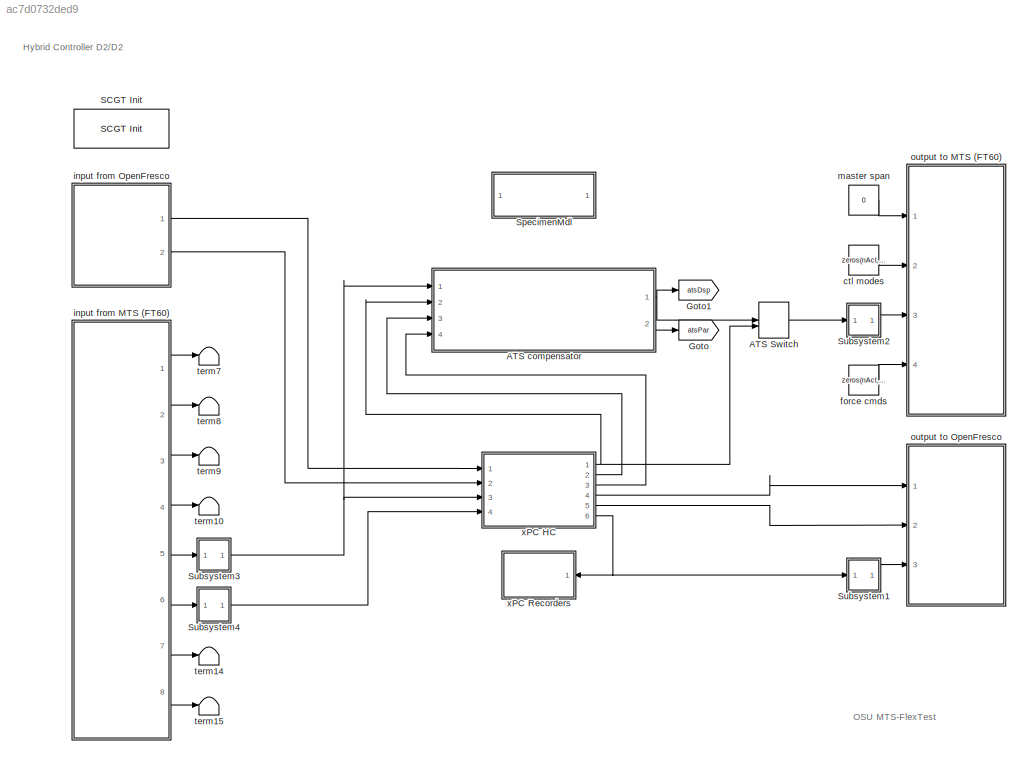
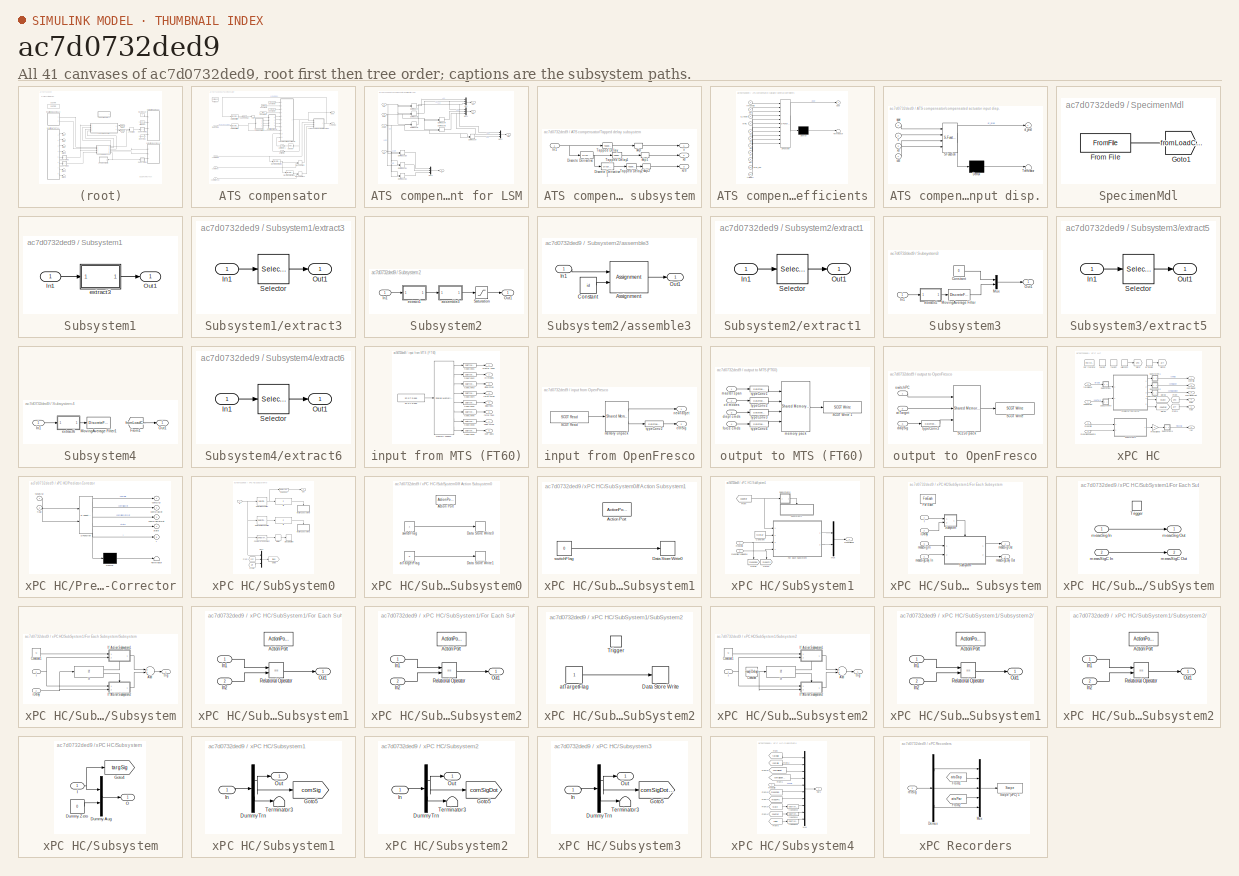
[diagram: thumbnail index - all 41 canvases of the model, root first then tree order]
MODEL slx_ac7d0732ded9
KIND model
CONFIG AbsTol = auto
CONFIG EnableMultiTasking = off
CONFIG FixedStep = controlPeriod
CONFIG MaxStep = auto
CONFIG MinStep = auto
CONFIG PreLoadFcn = initializeSimulation\ninitializeSCRAMNetGT\nATS_setup
CONFIG RelTol = 1e-3
CONFIG SampleTimeConstraint = Unconstrained
CONFIG Solver = FixedStepDiscrete
CONFIG SolverName = FixedStepDiscrete
CONFIG StartTime = 0.0
CONFIG StopTime = inf
BLOCK [ManualSwitch] ATS Switch
  CurrentSetting = 0
BLOCK [SubSystem] ATS compensator
  Ports = [4, 2]
  RequestExecContextInheritance = off
BLOCK [DiscreteTransferFcn] ATS compensator/Butterworth filter
  Denominator = Zden
  InputPortMap = u0
  Numerator = Znum
  Ports = [1, 1]
BLOCK [DiscreteTransferFcn] ATS compensator/Butterworth filter1
  Denominator = Zden
  InputPortMap = u0
  Numerator = Znum
  Ports = [1, 1]
BLOCK [SubSystem] ATS compensator/Coefficient for LSM
  Ports = [4, 4]
  RequestExecContextInheritance = off
BLOCK [DotProduct] ATS compensator/Coefficient for LSM/Dot Product
  OutDataTypeStr = Inherit: Inherit via internal rule
BLOCK [DotProduct] ATS compensator/Coefficient for LSM/Dot Product1
  OutDataTypeStr = Inherit: Inherit via internal rule
BLOCK [DotProduct] ATS compensator/Coefficient for LSM/Dot Product10
  OutDataTypeStr = Inherit: Inherit via internal rule
BLOCK [DotProduct] ATS compensator/Coefficient for LSM/Dot Product11
  OutDataTypeStr = Inherit: Inherit via internal rule
BLOCK [DotProduct] ATS compensator/Coefficient for LSM/Dot Product12
  OutDataTypeStr = Inherit: Inherit via internal rule
BLOCK [DotProduct] ATS compensator/Coefficient for LSM/Dot Product2
  OutDataTypeStr = Inherit: Inherit via internal rule
BLOCK [DotProduct] ATS compensator/Coefficient for LSM/Dot Product4
  OutDataTypeStr = Inherit: Inherit via internal rule
BLOCK [DotProduct] ATS compensator/Coefficient for LSM/Dot Product5
  OutDataTypeStr = Inherit: Inherit via internal rule
BLOCK [DotProduct] ATS compensator/Coefficient for LSM/Dot Product7
  OutDataTypeStr = Inherit: Inherit via internal rule
BLOCK [Mux] ATS compensator/Coefficient for LSM/Mux
  DisplayOption = bar
  Inputs = 3
  Ports = [3, 1]
BLOCK [Mux] ATS compensator/Coefficient for LSM/Mux1
  DisplayOption = bar
  Inputs = 3
  Ports = [3, 1]
BLOCK [Mux] ATS compensator/Coefficient for LSM/Mux2
  DisplayOption = bar
  Inputs = 3
  Ports = [3, 1]
BLOCK [Mux] ATS compensator/Coefficient for LSM/Mux4
  DisplayOption = bar
  Inputs = 3
  Ports = [3, 1]
BLOCK [Outport] ATS compensator/Coefficient for LSM/X(1,:)
  IconDisplay = Port number
BLOCK [Outport] ATS compensator/Coefficient for LSM/X(2,:)
  IconDisplay = Port number
  Port = 2
BLOCK [Outport] ATS compensator/Coefficient for LSM/X(3,:)
  IconDisplay = Port number
  Port = 3
BLOCK [Outport] ATS compensator/Coefficient for LSM/Y
  IconDisplay = Port number
  Port = 4
BLOCK [Inport] ATS compensator/Coefficient for LSM/um
  IconDisplay = Port number
BLOCK [Inport] ATS compensator/Coefficient for LSM/x2dm
  IconDisplay = Port number
  Port = 4
BLOCK [Inport] ATS compensator/Coefficient for LSM/xdm
  IconDisplay = Port number
  Port = 3
BLOCK [Inport] ATS compensator/Coefficient for LSM/xm
  IconDisplay = Port number
  Port = 2
BLOCK [Constant] ATS compensator/Constant1
  Value = param
BLOCK [Constant] ATS compensator/Constant2
  Value = P_range
BLOCK [Constant] ATS compensator/Constant3
  Value = Threshold
BLOCK [Constant] ATS compensator/Constant4
  Value = MRC
BLOCK [Reference] ATS compensator/Discrete Derivative  REF=simulink/Discrete/Discrete Derivative
  Ports = [1, 1]
  SourceBlock = simulink/Discrete/Discrete Derivative
  SourceProductBaseCode = SL
  SourceProductName = Simulink
  SourceType = Discrete Derivative
BLOCK [Reference] ATS compensator/Discrete Derivative1  REF=simulink/Discrete/Discrete Derivative
  Ports = [1, 1]
  SourceBlock = simulink/Discrete/Discrete Derivative
  SourceProductBaseCode = SL
  SourceProductName = Simulink
  SourceType = Discrete Derivative
BLOCK [ForEach] ATS compensator/For Each
  DisableCoverage = on
  IndexMode = One-based
  IterateSubsysMaskParameter = on
  Ports = []
  SubsysMaskParameterIterationDimension = 2
BLOCK [ManualSwitch] ATS compensator/Manual Switch
  CurrentSetting = 0
BLOCK [ManualSwitch] ATS compensator/Manual Switch1
  CurrentSetting = 0
BLOCK [Selector] ATS compensator/Selector
  IndexOptions = Index vector (dialog)
  Indices = 4
  InputPortWidth = 4
  OutputSizes = 1
  Ports = [1, 1]
BLOCK [Reference] ATS compensator/Tapped Delay  REF=simulink/Discrete/Tapped Delay
  Ports = [1, 1]
  SourceBlock = simulink/Discrete/Tapped Delay
  SourceProductBaseCode = SL
  SourceProductName = Simulink
  SourceType = Tapped Delay Line
BLOCK [SubSystem] ATS compensator/Tapped delay subsystem
  Ports = [1, 3]
  RequestExecContextInheritance = off
BLOCK [Reference] ATS compensator/Tapped delay subsystem/Discrete Derivative  REF=simulink/Discrete/Discrete Derivative
  Ports = [1, 1]
  SourceBlock = simulink/Discrete/Discrete Derivative
  SourceProductBaseCode = SL
  SourceProductName = Simulink
  SourceType = Discrete Derivative
BLOCK [Reference] ATS compensator/Tapped delay subsystem/Discrete Derivative1  REF=simulink/Discrete/Discrete Derivative
  Ports = [1, 1]
  SourceBlock = simulink/Discrete/Discrete Derivative
  SourceProductBaseCode = SL
  SourceProductName = Simulink
  SourceType = Discrete Derivative
BLOCK [Inport] ATS compensator/Tapped delay subsystem/In1
  IconDisplay = Port number
BLOCK [Reference] ATS compensator/Tapped delay subsystem/Tapped Delay  REF=simulink/Discrete/Tapped Delay
  Ports = [1, 1]
  SourceBlock = simulink/Discrete/Tapped Delay
  SourceProductBaseCode = SL
  SourceProductName = Simulink
  SourceType = Tapped Delay Line
BLOCK [Reference] ATS compensator/Tapped delay subsystem/Tapped Delay1  REF=simulink/Discrete/Tapped Delay
  Ports = [1, 1]
  SourceBlock = simulink/Discrete/Tapped Delay
  SourceProductBaseCode = SL
  SourceProductName = Simulink
  SourceType = Tapped Delay Line
BLOCK [Reference] ATS compensator/Tapped delay subsystem/Tapped Delay2  REF=simulink/Discrete/Tapped Delay
  Ports = [1, 1]
  SourceBlock = simulink/Discrete/Tapped Delay
  SourceProductBaseCode = SL
  SourceProductName = Simulink
  SourceType = Tapped Delay Line
BLOCK [Selector] ATS compensator/Tapped delay subsystem/skip
  IndexOptions = Index vector (dialog)
  Indices = [1:SN:Nl]
  InputPortWidth = Nl
  OutputSizes = 1
  Ports = [1, 1]
BLOCK [Selector] ATS compensator/Tapped delay subsystem/skip1
  IndexOptions = Index vector (dialog)
  Indices = [1:SN:Nl]
  InputPortWidth = Nl
  OutputSizes = 1
  Ports = [1, 1]
BLOCK [Selector] ATS compensator/Tapped delay subsystem/skip2
  IndexOptions = Index vector (dialog)
  Indices = [1:SN:Nl]
  InputPortWidth = Nl
  OutputSizes = 1
  Ports = [1, 1]
BLOCK [Outport] ATS compensator/Tapped delay subsystem/x
  IconDisplay = Port number
BLOCK [Outport] ATS compensator/Tapped delay subsystem/x2d
  IconDisplay = Port number
  Port = 3
BLOCK [Outport] ATS compensator/Tapped delay subsystem/xd
  IconDisplay = Port number
  Port = 2
BLOCK [UnitDelay] ATS compensator/Unit Delay
  HasFrameUpgradeWarning = on
  SampleTime = -1
BLOCK [UnitDelay] ATS compensator/Unit Delay1
  HasFrameUpgradeWarning = on
  SampleTime = -1
BLOCK [Outport] ATS compensator/apar
  ConcatenationDimension = 1
  IconDisplay = Port number
  Port = 2
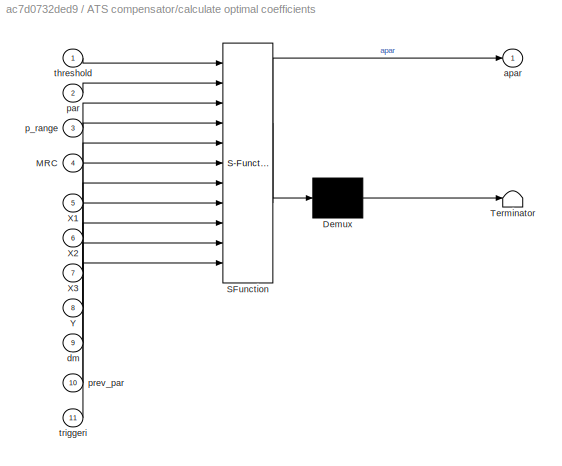
BLOCK [SubSystem] ATS compensator/calculate optimal coefficients
  ErrorFcn = Stateflow.Translate.translate
  PermitHierarchicalResolution = ExplicitOnly
  Ports = [11, 1]
  RequestExecContextInheritance = off
  SFBlockType = MATLAB Function
  TreatAsAtomicUnit = on
BLOCK [Demux] ATS compensator/calculate optimal coefficients/ Demux 
  Outputs = 1
  Ports = [1, 1]
BLOCK [S-Function] ATS compensator/calculate optimal coefficients/ SFunction 
  EnableBusSupport = on
  FunctionName = sf_sfun
  PortCounts = [11 2]
  Ports = [11, 2]
  SFcnIsStateOwnerBlock = off
  SFunctionDeploymentMode = off
  Tag = Stateflow S-Function HybridControllerD2D2sim 14
BLOCK [Terminator] ATS compensator/calculate optimal coefficients/ Terminator 
BLOCK [Inport] ATS compensator/calculate optimal coefficients/MRC
  IconDisplay = Port number
  Port = 4
BLOCK [Inport] ATS compensator/calculate optimal coefficients/X1
  IconDisplay = Port number
  Port = 5
BLOCK [Inport] ATS compensator/calculate optimal coefficients/X2
  IconDisplay = Port number
  Port = 6
BLOCK [Inport] ATS compensator/calculate optimal coefficients/X3
  IconDisplay = Port number
  Port = 7
BLOCK [Inport] ATS compensator/calculate optimal coefficients/Y
  IconDisplay = Port number
  Port = 8
BLOCK [Outport] ATS compensator/calculate optimal coefficients/apar
  IconDisplay = Port number
BLOCK [Inport] ATS compensator/calculate optimal coefficients/dm
  IconDisplay = Port number
  Port = 9
BLOCK [Inport] ATS compensator/calculate optimal coefficients/p_range
  IconDisplay = Port number
  Port = 3
BLOCK [Inport] ATS compensator/calculate optimal coefficients/par
  IconDisplay = Port number
  Port = 2
BLOCK [Inport] ATS compensator/calculate optimal coefficients/prev_par
  IconDisplay = Port number
  Port = 10
BLOCK [Inport] ATS compensator/calculate optimal coefficients/threshold
  IconDisplay = Port number
BLOCK [Inport] ATS compensator/calculate optimal coefficients/triggeri
  IconDisplay = Port number
  Port = 11
BLOCK [Inport] ATS compensator/comm accel
  IconDisplay = Port number
  Partition = on
  PartitionDimension = 1
  PartitionOffset = 0
  PartitionWidth = 1
  Port = 4
BLOCK [Inport] ATS compensator/comm disp
  IconDisplay = Port number
  Partition = on
  PartitionDimension = 1
  PartitionOffset = 0
  PartitionWidth = 1
  Port = 2
BLOCK [Inport] ATS compensator/comm vel
  IconDisplay = Port number
  Partition = on
  PartitionDimension = 1
  PartitionOffset = 0
  PartitionWidth = 1
  Port = 3
BLOCK [Outport] ATS compensator/comp disp
  ConcatenationDimension = 1
  IconDisplay = Port number
BLOCK [SubSystem] ATS compensator/compensated actuator input disp.
  ErrorFcn = Stateflow.Translate.translate
  PermitHierarchicalResolution = ExplicitOnly
  Ports = [4, 1]
  RequestExecContextInheritance = off
  SFBlockType = MATLAB Function
  TreatAsAtomicUnit = on
BLOCK [Demux] ATS compensator/compensated actuator input disp./ Demux 
  Outputs = 1
  Ports = [1, 1]
BLOCK [S-Function] ATS compensator/compensated actuator input disp./ SFunction 
  EnableBusSupport = on
  FunctionName = sf_sfun
  PortCounts = [4 2]
  Ports = [4, 2]
  SFcnIsStateOwnerBlock = off
  SFunctionDeploymentMode = off
  Tag = Stateflow S-Function HybridControllerD2D2sim 15
BLOCK [Terminator] ATS compensator/compensated actuator input disp./ Terminator 
BLOCK [Inport] ATS compensator/compensated actuator input disp./apar
  IconDisplay = Port number
BLOCK [Outport] ATS compensator/compensated actuator input disp./ut_pred
  IconDisplay = Port number
BLOCK [Inport] ATS compensator/compensated actuator input disp./x
  IconDisplay = Port number
  Port = 2
BLOCK [Inport] ATS compensator/compensated actuator input disp./x2d
  IconDisplay = Port number
  Port = 4
BLOCK [Inport] ATS compensator/compensated actuator input disp./xd
  IconDisplay = Port number
  Port = 3
BLOCK [Inport] ATS compensator/meas disp
  IconDisplay = Port number
  Partition = on
  PartitionDimension = 1
  PartitionOffset = 0
  PartitionWidth = 1
BLOCK [Selector] ATS compensator/skip
  IndexOptions = Index vector (dialog)
  Indices = [1:SN:Nl]
  InputPortWidth = Nl
  OutputSizes = 1
  Ports = [1, 1]
BLOCK [Goto] Goto
  GotoTag = atsPar
  TagVisibility = global
BLOCK [Goto] Goto1
  GotoTag = atsDsp
  TagVisibility = global
BLOCK [Reference] SCGT Init  REF=cwcec_scgt_lib/SCGT Init 
  Ports = []
  SourceBlock = cwcec_scgt_lib/SCGT Init
  SourceProductName = Simulink Real-Time: SCRAMNetGT
  SourceType = SCGT Init
BLOCK [SubSystem] SpecimenMdl
  Ports = []
  RequestExecContextInheritance = off
BLOCK [FromFile] SpecimenMdl/From File
  FileName = wave.mat
  SampleTime = 0
BLOCK [Goto] SpecimenMdl/Goto1
  GotoTag = fromLoadCell
  TagVisibility = global
BLOCK [SubSystem] Subsystem1
  Ports = [1, 1]
  RequestExecContextInheritance = off
BLOCK [Inport] Subsystem1/In1
  IconDisplay = Port number
BLOCK [Outport] Subsystem1/Out1
  IconDisplay = Port number
BLOCK [SubSystem] Subsystem1/extract3
  Ports = [1, 1]
  RequestExecContextInheritance = off
BLOCK [Inport] Subsystem1/extract3/In1
  IconDisplay = Port number
BLOCK [Outport] Subsystem1/extract3/Out1
  IconDisplay = Port number
BLOCK [Selector] Subsystem1/extract3/Selector
  IndexOptions = Index vector (dialog)
  Indices = id
  InputPortWidth = size
  OutputSizes = 1
  Ports = [1, 1]
BLOCK [SubSystem] Subsystem2
  Ports = [1, 1]
  RequestExecContextInheritance = off
BLOCK [Inport] Subsystem2/In1
  IconDisplay = Port number
BLOCK [Outport] Subsystem2/Out1
  IconDisplay = Port number
BLOCK [Saturate] Subsystem2/Saturation
  InputPortMap = u0
  LowerLimit = -5
  Ports = [1, 1]
  UpperLimit = 5
BLOCK [SubSystem] Subsystem2/assemble3
  Ports = [1, 1]
  RequestExecContextInheritance = off
BLOCK [Assignment] Subsystem2/assemble3/Assignment
  IndexOptions = Index vector (port)
  Indices = 1
  OutputInitialize = Specify size for each dimension in table
  OutputSizes = size
  Ports = [2, 1]
BLOCK [Constant] Subsystem2/assemble3/Constant
  Value = id
BLOCK [Inport] Subsystem2/assemble3/In1
  IconDisplay = Port number
BLOCK [Outport] Subsystem2/assemble3/Out1
  IconDisplay = Port number
BLOCK [SubSystem] Subsystem2/extract1
  Ports = [1, 1]
  RequestExecContextInheritance = off
BLOCK [Inport] Subsystem2/extract1/In1
  IconDisplay = Port number
BLOCK [Outport] Subsystem2/extract1/Out1
  IconDisplay = Port number
BLOCK [Selector] Subsystem2/extract1/Selector
  IndexOptions = Index vector (dialog)
  Indices = id
  InputPortWidth = size
  OutputSizes = 1
  Ports = [1, 1]
BLOCK [SubSystem] Subsystem3
  Ports = [1, 1]
  RequestExecContextInheritance = off
BLOCK [Constant] Subsystem3/Constant
  Value = 0
BLOCK [Inport] Subsystem3/In1
  IconDisplay = Port number
BLOCK [DiscreteFir] Subsystem3/MovingAverage Filter
  Coefficients = 1/numSample*ones(1,numSample)
  InputPortMap = u0
  OutputPortMap = o0
  Ports = [1, 1]
BLOCK [Mux] Subsystem3/Mux
  DisplayOption = bar
  Inputs = 2
  Ports = [2, 1]
BLOCK [Outport] Subsystem3/Out1
  IconDisplay = Port number
BLOCK [SubSystem] Subsystem3/extract5
  Ports = [1, 1]
  RequestExecContextInheritance = off
BLOCK [Inport] Subsystem3/extract5/In1
  IconDisplay = Port number
BLOCK [Outport] Subsystem3/extract5/Out1
  IconDisplay = Port number
BLOCK [Selector] Subsystem3/extract5/Selector
  IndexOptions = Index vector (dialog)
  Indices = id
  InputPortWidth = size
  OutputSizes = 1
  Ports = [1, 1]
BLOCK [SubSystem] Subsystem4
  Ports = [1, 1]
  RequestExecContextInheritance = off
BLOCK [From] Subsystem4/From1
  GotoTag = fromLoadCell
  TagVisibility = global
BLOCK [Inport] Subsystem4/In1
  IconDisplay = Port number
BLOCK [DiscreteFir] Subsystem4/MovingAverage Filter1
  Coefficients = 1/numSample*ones(1,numSample)
  InputPortMap = u0
  OutputPortMap = o0
  Ports = [1, 1]
BLOCK [Outport] Subsystem4/Out1
  IconDisplay = Port number
BLOCK [SubSystem] Subsystem4/extract6
  Ports = [1, 1]
  RequestExecContextInheritance = off
BLOCK [Inport] Subsystem4/extract6/In1
  IconDisplay = Port number
BLOCK [Outport] Subsystem4/extract6/Out1
  IconDisplay = Port number
BLOCK [Selector] Subsystem4/extract6/Selector
  IndexOptions = Index vector (dialog)
  Indices = id
  InputPortWidth = size
  OutputSizes = 1
  Ports = [1, 1]
BLOCK [Constant] ctl modes
  Value = zeros(nAct,1)
BLOCK [Constant] force cmds
  Value = zeros(nAct,1)
BLOCK [SubSystem] input from MTS (FT60)
  Ports = [0, 8]
  RequestExecContextInheritance = off
BLOCK [Reference] input from MTS (FT60)/SCGT Read  REF=cwcec_scgt_lib/SCGT Read 
  Ports = [0, 1]
  SourceBlock = cwcec_scgt_lib/SCGT Read
  SourceProductName = Simulink Real-Time: SCRAMNetGT
  SourceType = SCGT Read
BLOCK [Outport] input from MTS (FT60)/ctl modes
  IconDisplay = Port number
  Port = 2
BLOCK [Outport] input from MTS (FT60)/displ cmds
  IconDisplay = Port number
  Port = 3
BLOCK [Outport] input from MTS (FT60)/displ fbks
  IconDisplay = Port number
  Port = 5
BLOCK [Outport] input from MTS (FT60)/force cmds
  IconDisplay = Port number
  Port = 4
BLOCK [Outport] input from MTS (FT60)/force fbks
  IconDisplay = Port number
  Port = 6
BLOCK [Outport] input from MTS (FT60)/master span
  IconDisplay = Port number
BLOCK [Reference] input from MTS (FT60)/memory unpack  REF=slrtlib/Shared
Memory/Shared Memory Unpack 
  Ports = [1, 8]
  SourceBlock = slrtlib/Shared\nMemory/Shared Memory Unpack
  SourceProductBaseCode = XP
  SourceProductName = Simulink Real-Time
  SourceType = Shared Memory Partition Unpacking
BLOCK [DataTypeConversion] input from MTS (FT60)/typeConv1
  OutDataTypeStr = double
BLOCK [DataTypeConversion] input from MTS (FT60)/typeConv2
  OutDataTypeStr = uint32
BLOCK [DataTypeConversion] input from MTS (FT60)/typeConv3
  OutDataTypeStr = double
BLOCK [DataTypeConversion] input from MTS (FT60)/typeConv4
  OutDataTypeStr = double
BLOCK [DataTypeConversion] input from MTS (FT60)/typeConv5
  OutDataTypeStr = double
BLOCK [DataTypeConversion] input from MTS (FT60)/typeConv6
  OutDataTypeStr = double
BLOCK [DataTypeConversion] input from MTS (FT60)/typeConv8
  OutDataTypeStr = double
BLOCK [DataTypeConversion] input from MTS (FT60)/typeConv9
  OutDataTypeStr = double
BLOCK [Outport] input from MTS (FT60)/user adcs
  IconDisplay = Port number
  Port = 8
BLOCK [Outport] input from MTS (FT60)/valve cmds
  IconDisplay = Port number
  Port = 7
BLOCK [SubSystem] input from OpenFresco
  Ports = [0, 2]
  RequestExecContextInheritance = off
BLOCK [Reference] input from OpenFresco/SCGT Read   REF=cwcec_scgt_lib/SCGT Read 
  Ports = [0, 1]
  SourceBlock = cwcec_scgt_lib/SCGT Read
  SourceProductName = Simulink Real-Time: SCRAMNetGT
  SourceType = SCGT Read
BLOCK [Outport] input from OpenFresco/ctrlSig
  IconDisplay = Port number
  Port = 2
BLOCK [Reference] input from OpenFresco/memory unpack  REF=slrtlib/Shared
Memory/Shared Memory Unpack 
  Ports = [1, 2]
  SourceBlock = slrtlib/Shared\nMemory/Shared Memory Unpack
  SourceProductBaseCode = XP
  SourceProductName = Simulink Real-Time
  SourceType = Shared Memory Partition Unpacking
BLOCK [Outport] input from OpenFresco/newTarget
  IconDisplay = Port number
BLOCK [DataTypeConversion] input from OpenFresco/typeConv2
  OutDataTypeStr = double
BLOCK [Constant] master span
  Value = 0
BLOCK [SubSystem] output to MTS (FT60)
  Ports = [4]
  RequestExecContextInheritance = off
BLOCK [Reference] output to MTS (FT60)/SCGT Write 1  REF=cwcec_scgt_lib/SCGT Write 
  Ports = [1]
  SourceBlock = cwcec_scgt_lib/SCGT Write
  SourceProductName = Simulink Real-Time: SCRAMNetGT
  SourceType = SCGT Write
BLOCK [Inport] output to MTS (FT60)/ctl modes
  IconDisplay = Port number
  Port = 2
BLOCK [Inport] output to MTS (FT60)/displ cmds
  IconDisplay = Port number
  Port = 3
BLOCK [Inport] output to MTS (FT60)/force cmds
  IconDisplay = Port number
  Port = 4
BLOCK [Inport] output to MTS (FT60)/master span
  IconDisplay = Port number
BLOCK [Reference] output to MTS (FT60)/memory pack  REF=slrtlib/Shared
Memory/Shared Memory Pack 
  Ports = [4, 1]
  SourceBlock = slrtlib/Shared\nMemory/Shared Memory Pack
  SourceProductBaseCode = XP
  SourceProductName = Simulink Real-Time
  SourceType = Shared-memory Pack
BLOCK [DataTypeConversion] output to MTS (FT60)/typeConv1
  OutDataTypeStr = single
BLOCK [DataTypeConversion] output to MTS (FT60)/typeConv2
  OutDataTypeStr = uint32
BLOCK [DataTypeConversion] output to MTS (FT60)/typeConv3
  OutDataTypeStr = single
BLOCK [DataTypeConversion] output to MTS (FT60)/typeConv4
  OutDataTypeStr = single
BLOCK [SubSystem] output to OpenFresco
  Ports = [3]
  RequestExecContextInheritance = off
BLOCK [Reference] output to OpenFresco/SC150 pack  REF=slrtlib/Shared
Memory/Shared Memory Pack 
  Ports = [3, 1]
  SourceBlock = slrtlib/Shared\nMemory/Shared Memory Pack
  SourceProductBaseCode = XP
  SourceProductName = Simulink Real-Time
  SourceType = Shared-memory Pack
BLOCK [Reference] output to OpenFresco/SCGT Write   REF=cwcec_scgt_lib/SCGT Write 
  Ports = [1]
  SourceBlock = cwcec_scgt_lib/SCGT Write
  SourceProductName = Simulink Real-Time: SCRAMNetGT
  SourceType = SCGT Write
BLOCK [Inport] output to OpenFresco/atTarget
  IconDisplay = Port number
  Port = 2
BLOCK [Inport] output to OpenFresco/daqSig
  IconDisplay = Port number
  Port = 3
BLOCK [Inport] output to OpenFresco/switchPC
  IconDisplay = Port number
BLOCK [DataTypeConversion] output to OpenFresco/typeConv3
  OutDataTypeStr = single
BLOCK [Terminator] term10
BLOCK [Terminator] term14
BLOCK [Terminator] term15
BLOCK [Terminator] term7
BLOCK [Terminator] term8
BLOCK [Terminator] term9
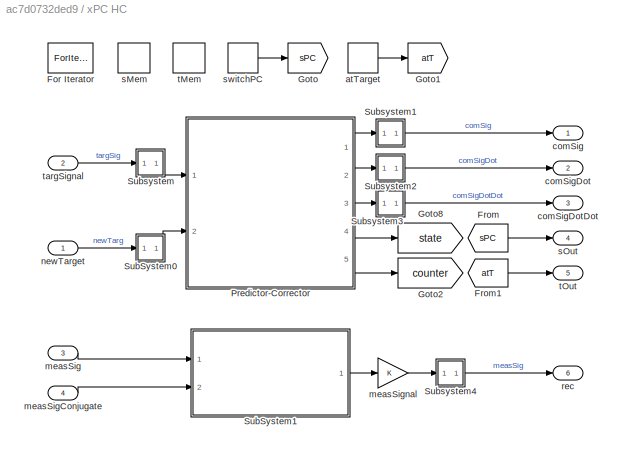
BLOCK [SubSystem] xPC HC
  Ports = [4, 6]
  RequestExecContextInheritance = off
BLOCK [ForIterator] xPC HC/For Iterator
  IterationLimit = upFact
  Ports = []
  ShowIterationPort = off
BLOCK [From] xPC HC/From
  GotoTag = sPC
  IconDisplay = Signal name
  TagVisibility = global
BLOCK [From] xPC HC/From1
  GotoTag = atT
  IconDisplay = Signal name
  TagVisibility = global
BLOCK [Goto] xPC HC/Goto
  GotoTag = sPC
  TagVisibility = global
BLOCK [Goto] xPC HC/Goto1
  GotoTag = atT
  TagVisibility = global
BLOCK [Goto] xPC HC/Goto2
  GotoTag = counter
  TagVisibility = global
BLOCK [Goto] xPC HC/Goto8
  GotoTag = state
  TagVisibility = global
BLOCK [SubSystem] xPC HC/Predictor-Corrector
  ErrorFcn = Stateflow.Translate.translate
  PermitHierarchicalResolution = ExplicitOnly
  Ports = [2, 5]
  RequestExecContextInheritance = off
  SFBlockType = Chart
  TreatAsAtomicUnit = on
BLOCK [Demux] xPC HC/Predictor-Corrector/ Demux 
  Outputs = 1
  Ports = [1, 1]
BLOCK [S-Function] xPC HC/Predictor-Corrector/ SFunction 
  EnableBusSupport = on
  FunctionName = sf_sfun
  Parameters = N,dtCon,dtInt,dtSim,nDOF
  PortCounts = [2 6]
  Ports = [2, 6]
  SFcnIsStateOwnerBlock = off
  SFunctionDeploymentMode = off
  Tag = Stateflow S-Function HybridControllerD2D2sim 2
BLOCK [Terminator] xPC HC/Predictor-Corrector/ Terminator 
BLOCK [Outport] xPC HC/Predictor-Corrector/comSig
  IconDisplay = Port number
BLOCK [Outport] xPC HC/Predictor-Corrector/comSigDot
  IconDisplay = Port number
  Port = 2
BLOCK [Outport] xPC HC/Predictor-Corrector/comSigDotDot
  IconDisplay = Port number
  Port = 3
BLOCK [Inport] xPC HC/Predictor-Corrector/flag
  IconDisplay = Port number
  Port = 2
BLOCK [Outport] xPC HC/Predictor-Corrector/i
  IconDisplay = Port number
  Port = 5
BLOCK [Outport] xPC HC/Predictor-Corrector/state
  IconDisplay = Port number
  Port = 4
BLOCK [Inport] xPC HC/Predictor-Corrector/targSig
  IconDisplay = Port number
BLOCK [SubSystem] xPC HC/SubSystem0
  Ports = [1, 1]
  RequestExecContextInheritance = off
BLOCK [Reference] xPC HC/SubSystem0/Compare To Constant  REF=simulink/Logic and Bit
Operations/Compare
To Constant
  Ports = [1, 1]
  SourceBlock = simulink/Logic and Bit\nOperations/Compare\nTo Constant
  SourceProductBaseCode = SL
  SourceProductName = Simulink
  SourceType = Compare To Constant
BLOCK [Delay] xPC HC/SubSystem0/Delay
  DelayLength = 10
  InputPortMap = u0
  Ports = [1, 1]
BLOCK [Reference] xPC HC/SubSystem0/Detect Fall Nonpositive  REF=simulink/Logic and Bit
Operations/Detect Fall
Nonpositive
  Ports = [1, 1]
  SourceBlock = simulink/Logic and Bit\nOperations/Detect Fall\nNonpositive
  SourceProductBaseCode = SL
  SourceProductName = Simulink
  SourceType = Detect Fall Nonpositive
BLOCK [Reference] xPC HC/SubSystem0/Detect Rise Positive  REF=simulink/Logic and Bit
Operations/Detect Rise
Positive
  Ports = [1, 1]
  SourceBlock = simulink/Logic and Bit\nOperations/Detect Rise\nPositive
  SourceProductBaseCode = SL
  SourceProductName = Simulink
  SourceType = Detect Rise Positive
BLOCK [From] xPC HC/SubSystem0/From
  GotoTag = sPC
  IconDisplay = Signal name
  TagVisibility = global
BLOCK [From] xPC HC/SubSystem0/From1
  GotoTag = atT
  IconDisplay = Signal name
  TagVisibility = global
BLOCK [Goto] xPC HC/SubSystem0/Goto8
  GotoTag = flags
  TagVisibility = global
BLOCK [SubSystem] xPC HC/SubSystem0/If Action Subsystem0
  Ports = [0, 0, 0, 0, 0, 0, 0, 1]
  RequestExecContextInheritance = off
  TreatAsAtomicUnit = on
BLOCK [ActionPort] xPC HC/SubSystem0/If Action Subsystem0/Action Port
  ActionPortLabel = if(u1 == 1)
  PropagateVarSize = During execution
BLOCK [DataStoreWrite] xPC HC/SubSystem0/If Action Subsystem0/Data Store Write0
  DataStoreName = sFlag
  Ports = [1]
BLOCK [DataStoreWrite] xPC HC/SubSystem0/If Action Subsystem0/Data Store Write1
  DataStoreName = tFlag
  Ports = [1]
BLOCK [Constant] xPC HC/SubSystem0/If Action Subsystem0/atTargetFlag
  OutDataTypeStr = int32
  SampleTime = -1
  Value = 0
BLOCK [Constant] xPC HC/SubSystem0/If Action Subsystem0/switchFlag
  OutDataTypeStr = int32
  SampleTime = -1
BLOCK [SubSystem] xPC HC/SubSystem0/If Action Subsystem1
  Ports = [0, 0, 0, 0, 0, 0, 0, 1]
  RequestExecContextInheritance = off
  TreatAsAtomicUnit = on
BLOCK [ActionPort] xPC HC/SubSystem0/If Action Subsystem1/Action Port
  ActionPortLabel = if(u1 == 1)
  PropagateVarSize = During execution
BLOCK [DataStoreWrite] xPC HC/SubSystem0/If Action Subsystem1/Data Store Write0
  DataStoreName = sFlag
  Ports = [1]
BLOCK [Constant] xPC HC/SubSystem0/If Action Subsystem1/switchFlag
  OutDataTypeStr = int32
  SampleTime = -1
  Value = 0
BLOCK [If] xPC HC/SubSystem0/If0
  IfExpression = u1 == 1
  Ports = [1, 1]
  ShowElse = off
BLOCK [If] xPC HC/SubSystem0/If1
  IfExpression = u1 == 1
  Ports = [1, 1]
  ShowElse = off
BLOCK [Inport] xPC HC/SubSystem0/In
  IconDisplay = Port number
BLOCK [Mux] xPC HC/SubSystem0/Mux1
  DisplayOption = bar
  Inputs = 3
  Ports = [3, 1]
BLOCK [Outport] xPC HC/SubSystem0/Out
  IconDisplay = Port number
BLOCK [Stop] xPC HC/SubSystem0/Stop Simulation
BLOCK [DataTypeConversion] xPC HC/SubSystem0/typeConv
  OutDataTypeStr = int32
BLOCK [SubSystem] xPC HC/SubSystem1
  Ports = [2, 1]
  RequestExecContextInheritance = off
BLOCK [Constant] xPC HC/SubSystem1/Constant
  Value = iDelay
BLOCK [SubSystem] xPC HC/SubSystem1/For Each Subsystem
  Ports = [4, 2]
  RequestExecContextInheritance = off
  TreatAsAtomicUnit = on
BLOCK [ForEach] xPC HC/SubSystem1/For Each Subsystem/For Each
  DisableCoverage = on
  IndexMode = One-based
  Ports = []
BLOCK [SubSystem] xPC HC/SubSystem1/For Each Subsystem/SubSystem
  Ports = [2, 2, 0, 1]
  RequestExecContextInheritance = off
  TreatAsAtomicUnit = on
BLOCK [TriggerPort] xPC HC/SubSystem1/For Each Subsystem/SubSystem/Trigger
  Ports = []
  StatesWhenEnabling = held
  VariantControl = (inherit)
BLOCK [Inport] xPC HC/SubSystem1/For Each Subsystem/SubSystem/measSig In
  IconDisplay = Port number
BLOCK [Outport] xPC HC/SubSystem1/For Each Subsystem/SubSystem/measSig Out
  IconDisplay = Port number
  InitialOutput = [0]
BLOCK [Inport] xPC HC/SubSystem1/For Each Subsystem/SubSystem/measSigC In
  IconDisplay = Port number
  Port = 2
BLOCK [Outport] xPC HC/SubSystem1/For Each Subsystem/SubSystem/measSigC Out
  IconDisplay = Port number
  InitialOutput = [0]
  Port = 2
BLOCK [SubSystem] xPC HC/SubSystem1/For Each Subsystem/Subsystem
  Ports = [2, 1]
  RequestExecContextInheritance = off
BLOCK [Sum] xPC HC/SubSystem1/For Each Subsystem/Subsystem/Add
  InputSameDT = off
  OutDataTypeStr = Inherit: Inherit via internal rule
  Ports = [2, 1]
  SaturateOnIntegerOverflow = off
BLOCK [Constant] xPC HC/SubSystem1/For Each Subsystem/Subsystem/Constant1
  Value = N
BLOCK [If] xPC HC/SubSystem1/For Each Subsystem/Subsystem/If
  IfExpression = u1 == 0
  Ports = [1, 2]
BLOCK [SubSystem] xPC HC/SubSystem1/For Each Subsystem/Subsystem/If Action Subsystem1
  Ports = [2, 1, 0, 0, 0, 0, 0, 1]
  RequestExecContextInheritance = off
  TreatAsAtomicUnit = on
BLOCK [ActionPort] xPC HC/SubSystem1/For Each Subsystem/Subsystem/If Action Subsystem1/Action Port
  ActionPortLabel = if(u1 == 0)
BLOCK [Inport] xPC HC/SubSystem1/For Each Subsystem/Subsystem/If Action Subsystem1/In1
  IconDisplay = Port number
BLOCK [Inport] xPC HC/SubSystem1/For Each Subsystem/Subsystem/If Action Subsystem1/In2
  IconDisplay = Port number
  Port = 2
BLOCK [Outport] xPC HC/SubSystem1/For Each Subsystem/Subsystem/If Action Subsystem1/Out1
  IconDisplay = Port number
  InitialOutput = 0
BLOCK [RelationalOperator] xPC HC/SubSystem1/For Each Subsystem/Subsystem/If Action Subsystem1/Relational Operator
  InputSameDT = off
  Operator = ==
  OutDataTypeStr = boolean
  Ports = [2, 1]
BLOCK [SubSystem] xPC HC/SubSystem1/For Each Subsystem/Subsystem/If Action Subsystem2
  Ports = [2, 1, 0, 0, 0, 0, 0, 1]
  RequestExecContextInheritance = off
  TreatAsAtomicUnit = on
BLOCK [ActionPort] xPC HC/SubSystem1/For Each Subsystem/Subsystem/If Action Subsystem2/Action Port
  ActionPortLabel = else
BLOCK [Inport] xPC HC/SubSystem1/For Each Subsystem/Subsystem/If Action Subsystem2/In1
  IconDisplay = Port number
BLOCK [Inport] xPC HC/SubSystem1/For Each Subsystem/Subsystem/If Action Subsystem2/In2
  IconDisplay = Port number
  Port = 2
BLOCK [Outport] xPC HC/SubSystem1/For Each Subsystem/Subsystem/If Action Subsystem2/Out1
  IconDisplay = Port number
  InitialOutput = 0
BLOCK [RelationalOperator] xPC HC/SubSystem1/For Each Subsystem/Subsystem/If Action Subsystem2/Relational Operator
  InputSameDT = off
  Operator = ==
  OutDataTypeStr = boolean
  Ports = [2, 1]
BLOCK [Inport] xPC HC/SubSystem1/For Each Subsystem/Subsystem/i
  IconDisplay = Port number
BLOCK [Inport] xPC HC/SubSystem1/For Each Subsystem/Subsystem/iDelay
  IconDisplay = Port number
  Port = 2
BLOCK [Outport] xPC HC/SubSystem1/For Each Subsystem/Subsystem/trig
  IconDisplay = Port number
BLOCK [Inport] xPC HC/SubSystem1/For Each Subsystem/i
  IconDisplay = Port number
BLOCK [Inport] xPC HC/SubSystem1/For Each Subsystem/iDelay
  IconDisplay = Port number
  Partition = on
  PartitionDimension = 1
  PartitionOffset = 0
  PartitionWidth = 1
  Port = 2
BLOCK [Inport] xPC HC/SubSystem1/For Each Subsystem/measSig In
  IconDisplay = Port number
  Partition = on
  PartitionDimension = 1
  PartitionOffset = 0
  PartitionWidth = 1
  Port = 3
BLOCK [Outport] xPC HC/SubSystem1/For Each Subsystem/measSig Out
  ConcatenationDimension = 1
  IconDisplay = Port number
BLOCK [Inport] xPC HC/SubSystem1/For Each Subsystem/measSigConj In
  IconDisplay = Port number
  Partition = on
  PartitionDimension = 1
  PartitionOffset = 0
  PartitionWidth = 1
  Port = 4
BLOCK [Outport] xPC HC/SubSystem1/For Each Subsystem/measSigConj Out
  ConcatenationDimension = 1
  IconDisplay = Port number
  Port = 2
BLOCK [From] xPC HC/SubSystem1/From
  GotoTag = counter
  TagVisibility = global
BLOCK [Goto] xPC HC/SubSystem1/Goto4
  GotoTag = measFrc
  TagVisibility = global
BLOCK [Goto] xPC HC/SubSystem1/Goto5
  GotoTag = measDsp
  TagVisibility = global
BLOCK [Mux] xPC HC/SubSystem1/Mux
  DisplayOption = bar
  Inputs = 2
  Ports = [2, 1]
BLOCK [SubSystem] xPC HC/SubSystem1/SubSystem2
  Ports = [0, 0, 0, 1]
  RequestExecContextInheritance = off
  TreatAsAtomicUnit = on
BLOCK [DataStoreWrite] xPC HC/SubSystem1/SubSystem2/Data Store Write
  DataStoreName = tFlag
  Ports = [1]
BLOCK [TriggerPort] xPC HC/SubSystem1/SubSystem2/Trigger
  Ports = []
  StatesWhenEnabling = held
  VariantControl = (inherit)
BLOCK [Constant] xPC HC/SubSystem1/SubSystem2/atTargetFlag
  OutDataTypeStr = int32
  SampleTime = -1
BLOCK [SubSystem] xPC HC/SubSystem1/Subsystem2
  Ports = [1, 1]
  RequestExecContextInheritance = off
BLOCK [Sum] xPC HC/SubSystem1/Subsystem2/Add
  InputSameDT = off
  OutDataTypeStr = Inherit: Inherit via internal rule
  Ports = [2, 1]
  SaturateOnIntegerOverflow = off
BLOCK [Constant] xPC HC/SubSystem1/Subsystem2/Constant
  Value = max(iDelay)
BLOCK [Constant] xPC HC/SubSystem1/Subsystem2/Constant1
  Value = N
BLOCK [If] xPC HC/SubSystem1/Subsystem2/If
  IfExpression = u1 == 0
  Ports = [1, 2]
BLOCK [SubSystem] xPC HC/SubSystem1/Subsystem2/If Action Subsystem1
  Ports = [2, 1, 0, 0, 0, 0, 0, 1]
  RequestExecContextInheritance = off
  TreatAsAtomicUnit = on
BLOCK [ActionPort] xPC HC/SubSystem1/Subsystem2/If Action Subsystem1/Action Port
  ActionPortLabel = if(u1 == 0)
BLOCK [Inport] xPC HC/SubSystem1/Subsystem2/If Action Subsystem1/In1
  IconDisplay = Port number
BLOCK [Inport] xPC HC/SubSystem1/Subsystem2/If Action Subsystem1/In2
  IconDisplay = Port number
  Port = 2
BLOCK [Outport] xPC HC/SubSystem1/Subsystem2/If Action Subsystem1/Out1
  IconDisplay = Port number
  InitialOutput = 0
BLOCK [RelationalOperator] xPC HC/SubSystem1/Subsystem2/If Action Subsystem1/Relational Operator
  InputSameDT = off
  Operator = ==
  OutDataTypeStr = boolean
  Ports = [2, 1]
BLOCK [SubSystem] xPC HC/SubSystem1/Subsystem2/If Action Subsystem2
  Ports = [2, 1, 0, 0, 0, 0, 0, 1]
  RequestExecContextInheritance = off
  TreatAsAtomicUnit = on
BLOCK [ActionPort] xPC HC/SubSystem1/Subsystem2/If Action Subsystem2/Action Port
  ActionPortLabel = else
BLOCK [Inport] xPC HC/SubSystem1/Subsystem2/If Action Subsystem2/In1
  IconDisplay = Port number
BLOCK [Inport] xPC HC/SubSystem1/Subsystem2/If Action Subsystem2/In2
  IconDisplay = Port number
  Port = 2
BLOCK [Outport] xPC HC/SubSystem1/Subsystem2/If Action Subsystem2/Out1
  IconDisplay = Port number
  InitialOutput = 0
BLOCK [RelationalOperator] xPC HC/SubSystem1/Subsystem2/If Action Subsystem2/Relational Operator
  InputSameDT = off
  Operator = ==
  OutDataTypeStr = boolean
  Ports = [2, 1]
BLOCK [Inport] xPC HC/SubSystem1/Subsystem2/i
  IconDisplay = Port number
BLOCK [Outport] xPC HC/SubSystem1/Subsystem2/trig
  IconDisplay = Port number
BLOCK [Inport] xPC HC/SubSystem1/measSig
  IconDisplay = Port number
BLOCK [Inport] xPC HC/SubSystem1/measSigConjugate
  IconDisplay = Port number
  Port = 2
BLOCK [Outport] xPC HC/SubSystem1/measSignal
  IconDisplay = Port number
BLOCK [SubSystem] xPC HC/Subsystem
  Ports = [1, 1]
  RequestExecContextInheritance = off
BLOCK [Mux] xPC HC/Subsystem/Dummy Aug
  DisplayOption = bar
  Inputs = [nDOF 1]
  Ports = [2, 1]
BLOCK [Constant] xPC HC/Subsystem/Dummy Zero
  OutDataTypeStr = double
  SampleTime = -1
  Value = 0
BLOCK [Goto] xPC HC/Subsystem/Goto4
  GotoTag = targSig
  TagVisibility = global
BLOCK [Inport] xPC HC/Subsystem/I
  IconDisplay = Port number
  PortDimensions = nDOF
BLOCK [Outport] xPC HC/Subsystem/O
  IconDisplay = Port number
  PortDimensions = nDOF+1
BLOCK [SubSystem] xPC HC/Subsystem1
  Ports = [1, 1]
  RequestExecContextInheritance = off
BLOCK [Demux] xPC HC/Subsystem1/Dummy Trn
  DisplayOption = bar
  Outputs = [nDOF 1]
  Ports = [1, 2]
BLOCK [Goto] xPC HC/Subsystem1/Goto5
  GotoTag = comSig
  TagVisibility = global
BLOCK [Inport] xPC HC/Subsystem1/In
  IconDisplay = Port number
  PortDimensions = nDOF+1
BLOCK [Outport] xPC HC/Subsystem1/Out
  IconDisplay = Port number
  PortDimensions = nDOF
BLOCK [Terminator] xPC HC/Subsystem1/Terminator3
BLOCK [SubSystem] xPC HC/Subsystem2
  Ports = [1, 1]
  RequestExecContextInheritance = off
BLOCK [Demux] xPC HC/Subsystem2/Dummy Trn
  DisplayOption = bar
  Outputs = [nDOF 1]
  Ports = [1, 2]
BLOCK [Goto] xPC HC/Subsystem2/Goto5
  GotoTag = comSigDot
  TagVisibility = global
BLOCK [Inport] xPC HC/Subsystem2/In
  IconDisplay = Port number
  PortDimensions = nDOF+1
BLOCK [Outport] xPC HC/Subsystem2/Out
  IconDisplay = Port number
  PortDimensions = nDOF
BLOCK [Terminator] xPC HC/Subsystem2/Terminator3
BLOCK [SubSystem] xPC HC/Subsystem3
  Ports = [1, 1]
  RequestExecContextInheritance = off
BLOCK [Demux] xPC HC/Subsystem3/Dummy Trn
  DisplayOption = bar
  Outputs = [nDOF 1]
  Ports = [1, 2]
BLOCK [Goto] xPC HC/Subsystem3/Goto5
  GotoTag = comSigDotDot
  TagVisibility = global
BLOCK [Inport] xPC HC/Subsystem3/In
  IconDisplay = Port number
  PortDimensions = nDOF+1
BLOCK [Outport] xPC HC/Subsystem3/Out
  IconDisplay = Port number
  PortDimensions = nDOF
BLOCK [Terminator] xPC HC/Subsystem3/Terminator3
BLOCK [SubSystem] xPC HC/Subsystem4
  Ports = [1, 1]
  RequestExecContextInheritance = off
BLOCK [From] xPC HC/Subsystem4/From
  GotoTag = targSig
  TagVisibility = global
BLOCK [From] xPC HC/Subsystem4/From1
  GotoTag = comSigDotDot
  TagVisibility = global
BLOCK [From] xPC HC/Subsystem4/From2
  GotoTag = comSig
  TagVisibility = global
BLOCK [From] xPC HC/Subsystem4/From3
  GotoTag = state
  TagVisibility = global
BLOCK [From] xPC HC/Subsystem4/From4
  GotoTag = counter
  TagVisibility = global
BLOCK [From] xPC HC/Subsystem4/From5
  GotoTag = flags
  TagVisibility = global
BLOCK [From] xPC HC/Subsystem4/From6
  GotoTag = measDsp
  TagVisibility = global
BLOCK [From] xPC HC/Subsystem4/From7
  GotoTag = measFrc
  TagVisibility = global
BLOCK [From] xPC HC/Subsystem4/From8
  GotoTag = comSigDot
  TagVisibility = global
BLOCK [Mux] xPC HC/Subsystem4/Mux
  DisplayOption = bar
  Inputs = 10
  Ports = [10, 1]
BLOCK [Outport] xPC HC/Subsystem4/Out1
  IconDisplay = Port number
BLOCK [Inport] xPC HC/Subsystem4/measSig
  IconDisplay = Port number
BLOCK [DataTypeConversion] xPC HC/Subsystem4/typeConv1
  OutDataTypeStr = double
BLOCK [DataTypeConversion] xPC HC/Subsystem4/typeConv2
  OutDataTypeStr = double
BLOCK [DataTypeConversion] xPC HC/Subsystem4/typeConv3
  OutDataTypeStr = double
BLOCK [DataStoreRead] xPC HC/atTarget
  DataStoreName = tFlag
  Ports = [0, 1]
BLOCK [Outport] xPC HC/comSig
  IconDisplay = Port number
BLOCK [Outport] xPC HC/comSigDot
  IconDisplay = Port number
  Port = 2
BLOCK [Outport] xPC HC/comSigDotDot
  IconDisplay = Port number
  Port = 3
BLOCK [Inport] xPC HC/measSig
  IconDisplay = Port number
  Port = 3
BLOCK [Inport] xPC HC/measSigConjugate
  IconDisplay = Port number
  Port = 4
BLOCK [Gain] xPC HC/measSignal
  OutDataTypeStr = double
  ParamDataTypeStr = Inherit: Inherit via internal rule
  SaturateOnIntegerOverflow = off
BLOCK [Inport] xPC HC/newTarget
  IconDisplay = Port number
BLOCK [Outport] xPC HC/rec
  IconDisplay = Port number
  Port = 6
BLOCK [DataStoreMemory] xPC HC/sMem
  DataStoreName = sFlag
  OutDataTypeStr = int32
  ShowAdditionalParam = off
  SignalType = real
BLOCK [Outport] xPC HC/sOut
  IconDisplay = Port number
  Port = 4
BLOCK [DataStoreRead] xPC HC/switchPC
  DataStoreName = sFlag
  Ports = [0, 1]
BLOCK [DataStoreMemory] xPC HC/tMem
  DataStoreName = tFlag
  OutDataTypeStr = int32
  ShowAdditionalParam = off
  SignalType = real
BLOCK [Outport] xPC HC/tOut
  IconDisplay = Port number
  Port = 5
BLOCK [Inport] xPC HC/targSignal
  IconDisplay = Port number
  Port = 2
BLOCK [SubSystem] xPC Recorders
  Ports = [1]
  RequestExecContextInheritance = off
BLOCK [Demux] xPC Recorders/Demux
  DisplayOption = bar
  Outputs = [(4*nDOF) (4*nDOF) 5]
  Ports = [1, 3]
BLOCK [From] xPC Recorders/From1
  GotoTag = atsDsp
  TagVisibility = global
BLOCK [From] xPC Recorders/From2
  GotoTag = atsPar
  TagVisibility = global
BLOCK [Mux] xPC Recorders/Mux
  DisplayOption = bar
  Inputs = 5
  Ports = [5, 1]
BLOCK [Reference] xPC Recorders/Scope (xPC) 1  REF=slrtlib/Displays and
Logging/Scope 
  Ports = [1]
  SourceBlock = slrtlib/Displays and\nLogging/Scope
  SourceProductBaseCode = XP
  SourceProductName = Simulink Real-Time
  SourceType = xpcscopeblock
BLOCK [Inport] xPC Recorders/recSig
  IconDisplay = Port number
ANNOTATION (root): Hybrid Controller D2/D2
ANNOTATION (root): OSU MTS-FlexTest
LINE ATS Switch:1 -> Subsystem2:1
NET ATS compensator/Butterworth filter1:1 -> ATS compensator/Tapped delay subsystem:1, ATS compensator/calculate optimal coefficients:9
LINE ATS compensator/Butterworth filter:1 -> ATS compensator/Tapped Delay:1
LINE ATS compensator/Coefficient for LSM/Dot Product10:1 -> ATS compensator/Coefficient for LSM/Mux4:1
LINE ATS compensator/Coefficient for LSM/Dot Product11:1 -> ATS compensator/Coefficient for LSM/Mux4:2
LINE ATS compensator/Coefficient for LSM/Dot Product12:1 -> ATS compensator/Coefficient for LSM/Mux4:3
NET ATS compensator/Coefficient for LSM/Dot Product1:1 -> ATS compensator/Coefficient for LSM/Mux1:1, ATS compensator/Coefficient for LSM/Mux:2
NET ATS compensator/Coefficient for LSM/Dot Product2:1 -> ATS compensator/Coefficient for LSM/Mux2:1, ATS compensator/Coefficient for LSM/Mux:3
LINE ATS compensator/Coefficient for LSM/Dot Product4:1 -> ATS compensator/Coefficient for LSM/Mux1:2
NET ATS compensator/Coefficient for LSM/Dot Product5:1 -> ATS compensator/Coefficient for LSM/Mux1:3, ATS compensator/Coefficient for LSM/Mux2:2
LINE ATS compensator/Coefficient for LSM/Dot Product7:1 -> ATS compensator/Coefficient for LSM/Mux2:3
LINE ATS compensator/Coefficient for LSM/Dot Product:1 -> ATS compensator/Coefficient for LSM/Mux:1
LINE ATS compensator/Coefficient for LSM/Mux1:1 -> ATS compensator/Coefficient for LSM/X(2,:):1
LINE ATS compensator/Coefficient for LSM/Mux2:1 -> ATS compensator/Coefficient for LSM/X(3,:):1
LINE ATS compensator/Coefficient for LSM/Mux4:1 -> ATS compensator/Coefficient for LSM/Y:1
LINE ATS compensator/Coefficient for LSM/Mux:1 -> ATS compensator/Coefficient for LSM/X(1,:):1
NET ATS compensator/Coefficient for LSM/um:1 -> ATS compensator/Coefficient for LSM/Dot Product10:1, ATS compensator/Coefficient for LSM/Dot Product11:1, ATS compensator/Coefficient for LSM/Dot Product12:1
NET ATS compensator/Coefficient for LSM/x2dm:1 -> ATS compensator/Coefficient for LSM/Dot Product12:2, ATS compensator/Coefficient for LSM/Dot Product2:2, ATS compensator/Coefficient for LSM/Dot Product5:2, ATS compensator/Coefficient for LSM/Dot Product7:1, ATS compensator/Coefficient for LSM/Dot Product7:2
NET ATS compensator/Coefficient for LSM/xdm:1 -> ATS compensator/Coefficient for LSM/Dot Product11:2, ATS compensator/Coefficient for LSM/Dot Product1:2, ATS compensator/Coefficient for LSM/Dot Product4:1, ATS compensator/Coefficient for LSM/Dot Product4:2, ATS compensator/Coefficient for LSM/Dot Product5:1
NET ATS compensator/Coefficient for LSM/xm:1 -> ATS compensator/Coefficient for LSM/Dot Product10:2, ATS compensator/Coefficient for LSM/Dot Product1:1, ATS compensator/Coefficient for LSM/Dot Product2:1, ATS compensator/Coefficient for LSM/Dot Product:1, ATS compensator/Coefficient for LSM/Dot Product:2
LINE ATS compensator/Coefficient for LSM:1 -> ATS compensator/calculate optimal coefficients:5
LINE ATS compensator/Coefficient for LSM:2 -> ATS compensator/calculate optimal coefficients:6
LINE ATS compensator/Coefficient for LSM:3 -> ATS compensator/calculate optimal coefficients:7
LINE ATS compensator/Coefficient for LSM:4 -> ATS compensator/calculate optimal coefficients:8
LINE ATS compensator/Constant1:1 -> ATS compensator/calculate optimal coefficients:2
LINE ATS compensator/Constant2:1 -> ATS compensator/calculate optimal coefficients:3
LINE ATS compensator/Constant3:1 -> ATS compensator/calculate optimal coefficients:1
LINE ATS compensator/Constant4:1 -> ATS compensator/calculate optimal coefficients:4
LINE ATS compensator/Discrete Derivative1:1 -> ATS compensator/Manual Switch1:1
NET ATS compensator/Discrete Derivative:1 -> ATS compensator/Discrete Derivative1:1, ATS compensator/Manual Switch:1
LINE ATS compensator/Manual Switch1:1 -> ATS compensator/compensated actuator input disp.:4
LINE ATS compensator/Manual Switch:1 -> ATS compensator/compensated actuator input disp.:3
LINE ATS compensator/Selector:1 -> ATS compensator/Unit Delay1:1
LINE ATS compensator/Tapped Delay:1 -> ATS compensator/skip:1
LINE ATS compensator/Tapped delay subsystem/Discrete Derivative1:1 -> ATS compensator/Tapped delay subsystem/Tapped Delay2:1
NET ATS compensator/Tapped delay subsystem/Discrete Derivative:1 -> ATS compensator/Tapped delay subsystem/Discrete Derivative1:1, ATS compensator/Tapped delay subsystem/Tapped Delay1:1
NET ATS compensator/Tapped delay subsystem/In1:1 -> ATS compensator/Tapped delay subsystem/Discrete Derivative:1, ATS compensator/Tapped delay subsystem/Tapped Delay:1
LINE ATS compensator/Tapped delay subsystem/Tapped Delay1:1 -> ATS compensator/Tapped delay subsystem/skip1:1
LINE ATS compensator/Tapped delay subsystem/Tapped Delay2:1 -> ATS compensator/Tapped delay subsystem/skip2:1
LINE ATS compensator/Tapped delay subsystem/Tapped Delay:1 -> ATS compensator/Tapped delay subsystem/skip:1
LINE ATS compensator/Tapped delay subsystem/skip1:1 -> ATS compensator/Tapped delay subsystem/xd:1
LINE ATS compensator/Tapped delay subsystem/skip2:1 -> ATS compensator/Tapped delay subsystem/x2d:1
LINE ATS compensator/Tapped delay subsystem/skip:1 -> ATS compensator/Tapped delay subsystem/x:1
LINE ATS compensator/Tapped delay subsystem:1 -> ATS compensator/Coefficient for LSM:2
LINE ATS compensator/Tapped delay subsystem:2 -> ATS compensator/Coefficient for LSM:3
LINE ATS compensator/Tapped delay subsystem:3 -> ATS compensator/Coefficient for LSM:4
LINE ATS compensator/Unit Delay1:1 -> ATS compensator/calculate optimal coefficients:11
LINE ATS compensator/Unit Delay:1 -> ATS compensator/calculate optimal coefficients:10
NET ATS compensator/calculate optimal coefficients:1 -> ATS compensator/Selector:1, ATS compensator/Unit Delay:1, ATS compensator/apar:1, ATS compensator/compensated actuator input disp.:1
LINE ATS compensator/comm accel:1 -> ATS compensator/Manual Switch1:2
NET ATS compensator/comm disp:1 -> ATS compensator/Discrete Derivative:1, ATS compensator/compensated actuator input disp.:2
LINE ATS compensator/comm vel:1 -> ATS compensator/Manual Switch:2
NET ATS compensator/compensated actuator input disp.:1 -> ATS compensator/Butterworth filter:1, ATS compensator/comp disp:1
LINE ATS compensator/meas disp:1 -> ATS compensator/Butterworth filter1:1
LINE ATS compensator/skip:1 -> ATS compensator/Coefficient for LSM:1
NET ATS compensator:1 -> ATS Switch:1, Goto1:1
LINE ATS compensator:2 -> Goto:1
LINE SpecimenMdl/From File:1 -> SpecimenMdl/Goto1:1
LINE Subsystem1/In1:1 -> Subsystem1/extract3:1
LINE Subsystem1/extract3/In1:1 -> Subsystem1/extract3/Selector:1
LINE Subsystem1/extract3/Selector:1 -> Subsystem1/extract3/Out1:1
LINE Subsystem1/extract3:1 -> Subsystem1/Out1:1
LINE Subsystem1:1 -> output to OpenFresco:3
LINE Subsystem2/In1:1 -> Subsystem2/extract1:1
LINE Subsystem2/Saturation:1 -> Subsystem2/Out1:1
LINE Subsystem2/assemble3/Assignment:1 -> Subsystem2/assemble3/Out1:1
LINE Subsystem2/assemble3/Constant:1 -> Subsystem2/assemble3/Assignment:2
LINE Subsystem2/assemble3/In1:1 -> Subsystem2/assemble3/Assignment:1
LINE Subsystem2/assemble3:1 -> Subsystem2/Saturation:1
LINE Subsystem2/extract1/In1:1 -> Subsystem2/extract1/Selector:1
LINE Subsystem2/extract1/Selector:1 -> Subsystem2/extract1/Out1:1
LINE Subsystem2/extract1:1 -> Subsystem2/assemble3:1
LINE Subsystem2:1 -> output to MTS (FT60):3
LINE Subsystem3/Constant:1 -> Subsystem3/Mux:1
LINE Subsystem3/In1:1 -> Subsystem3/extract5:1
LINE Subsystem3/MovingAverage Filter:1 -> Subsystem3/Mux:2
LINE Subsystem3/Mux:1 -> Subsystem3/Out1:1
LINE Subsystem3/extract5/In1:1 -> Subsystem3/extract5/Selector:1
LINE Subsystem3/extract5/Selector:1 -> Subsystem3/extract5/Out1:1
LINE Subsystem3/extract5:1 -> Subsystem3/MovingAverage Filter:1
NET Subsystem3:1 -> ATS compensator:1, xPC HC:3
LINE Subsystem4/From1:1 -> Subsystem4/Out1:1
LINE Subsystem4/In1:1 -> Subsystem4/extract6:1
LINE Subsystem4/extract6/In1:1 -> Subsystem4/extract6/Selector:1
LINE Subsystem4/extract6/Selector:1 -> Subsystem4/extract6/Out1:1
LINE Subsystem4/extract6:1 -> Subsystem4/MovingAverage Filter1:1
LINE Subsystem4:1 -> xPC HC:4
LINE ctl modes:1 -> output to MTS (FT60):2
LINE force cmds:1 -> output to MTS (FT60):4
LINE input from MTS (FT60)/SCGT Read:1 -> input from MTS (FT60)/memory unpack:1
LINE input from MTS (FT60)/memory unpack:1 -> input from MTS (FT60)/typeConv1:1
LINE input from MTS (FT60)/memory unpack:2 -> input from MTS (FT60)/typeConv2:1
LINE input from MTS (FT60)/memory unpack:3 -> input from MTS (FT60)/typeConv3:1
LINE input from MTS (FT60)/memory unpack:4 -> input from MTS (FT60)/typeConv4:1
LINE input from MTS (FT60)/memory unpack:5 -> input from MTS (FT60)/typeConv5:1
LINE input from MTS (FT60)/memory unpack:6 -> input from MTS (FT60)/typeConv6:1
LINE input from MTS (FT60)/memory unpack:7 -> input from MTS (FT60)/typeConv8:1
LINE input from MTS (FT60)/memory unpack:8 -> input from MTS (FT60)/typeConv9:1
LINE input from MTS (FT60)/typeConv1:1 -> input from MTS (FT60)/master span:1
LINE input from MTS (FT60)/typeConv2:1 -> input from MTS (FT60)/ctl modes:1
LINE input from MTS (FT60)/typeConv3:1 -> input from MTS (FT60)/displ cmds:1
LINE input from MTS (FT60)/typeConv4:1 -> input from MTS (FT60)/force cmds:1
LINE input from MTS (FT60)/typeConv5:1 -> input from MTS (FT60)/displ fbks:1
LINE input from MTS (FT60)/typeConv6:1 -> input from MTS (FT60)/force fbks:1
LINE input from MTS (FT60)/typeConv8:1 -> input from MTS (FT60)/valve cmds:1
LINE input from MTS (FT60)/typeConv9:1 -> input from MTS (FT60)/user adcs:1
LINE input from MTS (FT60):1 -> term7:1
LINE input from MTS (FT60):2 -> term8:1
LINE input from MTS (FT60):3 -> term9:1
LINE input from MTS (FT60):4 -> term10:1
LINE input from MTS (FT60):5 -> Subsystem3:1
LINE input from MTS (FT60):6 -> Subsystem4:1
LINE input from MTS (FT60):7 -> term14:1
LINE input from MTS (FT60):8 -> term15:1
LINE input from OpenFresco/SCGT Read :1 -> input from OpenFresco/memory unpack:1
LINE input from OpenFresco/memory unpack:1 -> input from OpenFresco/newTarget:1
LINE input from OpenFresco/memory unpack:2 -> input from OpenFresco/typeConv2:1
LINE input from OpenFresco/typeConv2:1 -> input from OpenFresco/ctrlSig:1
LINE input from OpenFresco:1 -> xPC HC:1
LINE input from OpenFresco:2 -> xPC HC:2
LINE master span:1 -> output to MTS (FT60):1
LINE output to MTS (FT60)/ctl modes:1 -> output to MTS (FT60)/typeConv2:1
LINE output to MTS (FT60)/displ cmds:1 -> output to MTS (FT60)/typeConv3:1
LINE output to MTS (FT60)/force cmds:1 -> output to MTS (FT60)/typeConv4:1
LINE output to MTS (FT60)/master span:1 -> output to MTS (FT60)/typeConv1:1
LINE output to MTS (FT60)/memory pack:1 -> output to MTS (FT60)/SCGT Write 1:1
LINE output to MTS (FT60)/typeConv1:1 -> output to MTS (FT60)/memory pack:1
LINE output to MTS (FT60)/typeConv2:1 -> output to MTS (FT60)/memory pack:2
LINE output to MTS (FT60)/typeConv3:1 -> output to MTS (FT60)/memory pack:3
LINE output to MTS (FT60)/typeConv4:1 -> output to MTS (FT60)/memory pack:4
LINE output to OpenFresco/SC150 pack:1 -> output to OpenFresco/SCGT Write :1
LINE output to OpenFresco/atTarget:1 -> output to OpenFresco/SC150 pack:2
LINE output to OpenFresco/daqSig:1 -> output to OpenFresco/typeConv3:1
LINE output to OpenFresco/switchPC:1 -> output to OpenFresco/SC150 pack:1
LINE output to OpenFresco/typeConv3:1 -> output to OpenFresco/SC150 pack:3
LINE xPC HC/From1:1 -> xPC HC/tOut:1
LINE xPC HC/From:1 -> xPC HC/sOut:1
LINE xPC HC/Predictor-Corrector:1 -> xPC HC/Subsystem1:1
LINE xPC HC/Predictor-Corrector:2 -> xPC HC/Subsystem2:1
LINE xPC HC/Predictor-Corrector:3 -> xPC HC/Subsystem3:1
LINE xPC HC/Predictor-Corrector:4 -> xPC HC/Goto8:1
LINE xPC HC/Predictor-Corrector:5 -> xPC HC/Goto2:1
LINE xPC HC/SubSystem0/Compare To Constant:1 -> xPC HC/SubSystem0/Delay:1
LINE xPC HC/SubSystem0/Delay:1 -> xPC HC/SubSystem0/Stop Simulation:1
LINE xPC HC/SubSystem0/Detect Fall Nonpositive:1 -> xPC HC/SubSystem0/If1:1
NET xPC HC/SubSystem0/Detect Rise Positive:1 -> xPC HC/SubSystem0/If0:1, xPC HC/SubSystem0/typeConv:1
LINE xPC HC/SubSystem0/From1:1 -> xPC HC/SubSystem0/Mux1:3
LINE xPC HC/SubSystem0/From:1 -> xPC HC/SubSystem0/Mux1:2
LINE xPC HC/SubSystem0/If Action Subsystem0/atTargetFlag:1 -> xPC HC/SubSystem0/If Action Subsystem0/Data Store Write1:1
LINE xPC HC/SubSystem0/If Action Subsystem0/switchFlag:1 -> xPC HC/SubSystem0/If Action Subsystem0/Data Store Write0:1
LINE xPC HC/SubSystem0/If Action Subsystem1/switchFlag:1 -> xPC HC/SubSystem0/If Action Subsystem1/Data Store Write0:1
LINE xPC HC/SubSystem0/If0:1 -> xPC HC/SubSystem0/If Action Subsystem0:ifaction
LINE xPC HC/SubSystem0/If1:1 -> xPC HC/SubSystem0/If Action Subsystem1:ifaction
NET xPC HC/SubSystem0/In:1 -> xPC HC/SubSystem0/Compare To Constant:1, xPC HC/SubSystem0/Detect Fall Nonpositive:1, xPC HC/SubSystem0/Detect Rise Positive:1, xPC HC/SubSystem0/Mux1:1
LINE xPC HC/SubSystem0/Mux1:1 -> xPC HC/SubSystem0/Goto8:1
LINE xPC HC/SubSystem0/typeConv:1 -> xPC HC/SubSystem0/Out:1
LINE xPC HC/SubSystem0:1 -> xPC HC/Predictor-Corrector:2
LINE xPC HC/SubSystem1/Constant:1 -> xPC HC/SubSystem1/For Each Subsystem:2
LINE xPC HC/SubSystem1/For Each Subsystem/SubSystem/measSig In:1 -> xPC HC/SubSystem1/For Each Subsystem/SubSystem/measSig Out:1
LINE xPC HC/SubSystem1/For Each Subsystem/SubSystem/measSigC In:1 -> xPC HC/SubSystem1/For Each Subsystem/SubSystem/measSigC Out:1
LINE xPC HC/SubSystem1/For Each Subsystem/SubSystem:1 -> xPC HC/SubSystem1/For Each Subsystem/measSig Out:1
LINE xPC HC/SubSystem1/For Each Subsystem/SubSystem:2 -> xPC HC/SubSystem1/For Each Subsystem/measSigConj Out:1
LINE xPC HC/SubSystem1/For Each Subsystem/Subsystem/Add:1 -> xPC HC/SubSystem1/For Each Subsystem/Subsystem/trig:1
LINE xPC HC/SubSystem1/For Each Subsystem/Subsystem/Constant1:1 -> xPC HC/SubSystem1/For Each Subsystem/Subsystem/If Action Subsystem1:1
LINE xPC HC/SubSystem1/For Each Subsystem/Subsystem/If Action Subsystem1/In1:1 -> xPC HC/SubSystem1/For Each Subsystem/Subsystem/If Action Subsystem1/Relational Operator:1
LINE xPC HC/SubSystem1/For Each Subsystem/Subsystem/If Action Subsystem1/In2:1 -> xPC HC/SubSystem1/For Each Subsystem/Subsystem/If Action Subsystem1/Relational Operator:2
LINE xPC HC/SubSystem1/For Each Subsystem/Subsystem/If Action Subsystem1/Relational Operator:1 -> xPC HC/SubSystem1/For Each Subsystem/Subsystem/If Action Subsystem1/Out1:1
LINE xPC HC/SubSystem1/For Each Subsystem/Subsystem/If Action Subsystem1:1 -> xPC HC/SubSystem1/For Each Subsystem/Subsystem/Add:1
LINE xPC HC/SubSystem1/For Each Subsystem/Subsystem/If Action Subsystem2/In1:1 -> xPC HC/SubSystem1/For Each Subsystem/Subsystem/If Action Subsystem2/Relational Operator:1
LINE xPC HC/SubSystem1/For Each Subsystem/Subsystem/If Action Subsystem2/In2:1 -> xPC HC/SubSystem1/For Each Subsystem/Subsystem/If Action Subsystem2/Relational Operator:2
LINE xPC HC/SubSystem1/For Each Subsystem/Subsystem/If Action Subsystem2/Relational Operator:1 -> xPC HC/SubSystem1/For Each Subsystem/Subsystem/If Action Subsystem2/Out1:1
LINE xPC HC/SubSystem1/For Each Subsystem/Subsystem/If Action Subsystem2:1 -> xPC HC/SubSystem1/For Each Subsystem/Subsystem/Add:2
LINE xPC HC/SubSystem1/For Each Subsystem/Subsystem/If:1 -> xPC HC/SubSystem1/For Each Subsystem/Subsystem/If Action Subsystem1:ifaction
LINE xPC HC/SubSystem1/For Each Subsystem/Subsystem/If:2 -> xPC HC/SubSystem1/For Each Subsystem/Subsystem/If Action Subsystem2:ifaction
NET xPC HC/SubSystem1/For Each Subsystem/Subsystem/i:1 -> xPC HC/SubSystem1/For Each Subsystem/Subsystem/If Action Subsystem1:2, xPC HC/SubSystem1/For Each Subsystem/Subsystem/If Action Subsystem2:1
NET xPC HC/SubSystem1/For Each Subsystem/Subsystem/iDelay:1 -> xPC HC/SubSystem1/For Each Subsystem/Subsystem/If Action Subsystem2:2, xPC HC/SubSystem1/For Each Subsystem/Subsystem/If:1
LINE xPC HC/SubSystem1/For Each Subsystem/Subsystem:1 -> xPC HC/SubSystem1/For Each Subsystem/SubSystem:trigger
LINE xPC HC/SubSystem1/For Each Subsystem/i:1 -> xPC HC/SubSystem1/For Each Subsystem/Subsystem:1
LINE xPC HC/SubSystem1/For Each Subsystem/iDelay:1 -> xPC HC/SubSystem1/For Each Subsystem/Subsystem:2
LINE xPC HC/SubSystem1/For Each Subsystem/measSig In:1 -> xPC HC/SubSystem1/For Each Subsystem/SubSystem:1
LINE xPC HC/SubSystem1/For Each Subsystem/measSigConj In:1 -> xPC HC/SubSystem1/For Each Subsystem/SubSystem:2
LINE xPC HC/SubSystem1/For Each Subsystem:1 -> xPC HC/SubSystem1/Mux:1
LINE xPC HC/SubSystem1/For Each Subsystem:2 -> xPC HC/SubSystem1/Mux:2
NET xPC HC/SubSystem1/From:1 -> xPC HC/SubSystem1/For Each Subsystem:1, xPC HC/SubSystem1/Subsystem2:1
LINE xPC HC/SubSystem1/Mux:1 -> xPC HC/SubSystem1/measSignal:1
LINE xPC HC/SubSystem1/SubSystem2/atTargetFlag:1 -> xPC HC/SubSystem1/SubSystem2/Data Store Write:1
LINE xPC HC/SubSystem1/Subsystem2/Add:1 -> xPC HC/SubSystem1/Subsystem2/trig:1
LINE xPC HC/SubSystem1/Subsystem2/Constant1:1 -> xPC HC/SubSystem1/Subsystem2/If Action Subsystem1:1
NET xPC HC/SubSystem1/Subsystem2/Constant:1 -> xPC HC/SubSystem1/Subsystem2/If Action Subsystem2:2, xPC HC/SubSystem1/Subsystem2/If:1
LINE xPC HC/SubSystem1/Subsystem2/If Action Subsystem1/In1:1 -> xPC HC/SubSystem1/Subsystem2/If Action Subsystem1/Relational Operator:1
LINE xPC HC/SubSystem1/Subsystem2/If Action Subsystem1/In2:1 -> xPC HC/SubSystem1/Subsystem2/If Action Subsystem1/Relational Operator:2
LINE xPC HC/SubSystem1/Subsystem2/If Action Subsystem1/Relational Operator:1 -> xPC HC/SubSystem1/Subsystem2/If Action Subsystem1/Out1:1
LINE xPC HC/SubSystem1/Subsystem2/If Action Subsystem1:1 -> xPC HC/SubSystem1/Subsystem2/Add:1
LINE xPC HC/SubSystem1/Subsystem2/If Action Subsystem2/In1:1 -> xPC HC/SubSystem1/Subsystem2/If Action Subsystem2/Relational Operator:1
LINE xPC HC/SubSystem1/Subsystem2/If Action Subsystem2/In2:1 -> xPC HC/SubSystem1/Subsystem2/If Action Subsystem2/Relational Operator:2
LINE xPC HC/SubSystem1/Subsystem2/If Action Subsystem2/Relational Operator:1 -> xPC HC/SubSystem1/Subsystem2/If Action Subsystem2/Out1:1
LINE xPC HC/SubSystem1/Subsystem2/If Action Subsystem2:1 -> xPC HC/SubSystem1/Subsystem2/Add:2
LINE xPC HC/SubSystem1/Subsystem2/If:1 -> xPC HC/SubSystem1/Subsystem2/If Action Subsystem1:ifaction
LINE xPC HC/SubSystem1/Subsystem2/If:2 -> xPC HC/SubSystem1/Subsystem2/If Action Subsystem2:ifaction
NET xPC HC/SubSystem1/Subsystem2/i:1 -> xPC HC/SubSystem1/Subsystem2/If Action Subsystem1:2, xPC HC/SubSystem1/Subsystem2/If Action Subsystem2:1
LINE xPC HC/SubSystem1/Subsystem2:1 -> xPC HC/SubSystem1/SubSystem2:trigger
NET xPC HC/SubSystem1/measSig:1 -> xPC HC/SubSystem1/For Each Subsystem:3, xPC HC/SubSystem1/Goto5:1
NET xPC HC/SubSystem1/measSigConjugate:1 -> xPC HC/SubSystem1/For Each Subsystem:4, xPC HC/SubSystem1/Goto4:1
LINE xPC HC/SubSystem1:1 -> xPC HC/measSignal:1
LINE xPC HC/Subsystem/Dummy Aug:1 -> xPC HC/Subsystem/O:1
LINE xPC HC/Subsystem/Dummy Zero:1 -> xPC HC/Subsystem/Dummy Aug:2
NET xPC HC/Subsystem/I:1 -> xPC HC/Subsystem/Dummy Aug:1, xPC HC/Subsystem/Goto4:1
NET xPC HC/Subsystem1/Dummy Trn:1 -> xPC HC/Subsystem1/Goto5:1, xPC HC/Subsystem1/Out:1
LINE xPC HC/Subsystem1/Dummy Trn:2 -> xPC HC/Subsystem1/Terminator3:1
LINE xPC HC/Subsystem1/In:1 -> xPC HC/Subsystem1/Dummy Trn:1
LINE xPC HC/Subsystem1:1 -> xPC HC/comSig:1
NET xPC HC/Subsystem2/Dummy Trn:1 -> xPC HC/Subsystem2/Goto5:1, xPC HC/Subsystem2/Out:1
LINE xPC HC/Subsystem2/Dummy Trn:2 -> xPC HC/Subsystem2/Terminator3:1
LINE xPC HC/Subsystem2/In:1 -> xPC HC/Subsystem2/Dummy Trn:1
LINE xPC HC/Subsystem2:1 -> xPC HC/comSigDot:1
NET xPC HC/Subsystem3/Dummy Trn:1 -> xPC HC/Subsystem3/Goto5:1, xPC HC/Subsystem3/Out:1
LINE xPC HC/Subsystem3/Dummy Trn:2 -> xPC HC/Subsystem3/Terminator3:1
LINE xPC HC/Subsystem3/In:1 -> xPC HC/Subsystem3/Dummy Trn:1
LINE xPC HC/Subsystem3:1 -> xPC HC/comSigDotDot:1
LINE xPC HC/Subsystem4/From1:1 -> xPC HC/Subsystem4/Mux:4
LINE xPC HC/Subsystem4/From2:1 -> xPC HC/Subsystem4/Mux:2
LINE xPC HC/Subsystem4/From3:1 -> xPC HC/Subsystem4/typeConv3:1
LINE xPC HC/Subsystem4/From4:1 -> xPC HC/Subsystem4/typeConv1:1
LINE xPC HC/Subsystem4/From5:1 -> xPC HC/Subsystem4/typeConv2:1
LINE xPC HC/Subsystem4/From6:1 -> xPC HC/Subsystem4/Mux:6
LINE xPC HC/Subsystem4/From7:1 -> xPC HC/Subsystem4/Mux:7
LINE xPC HC/Subsystem4/From8:1 -> xPC HC/Subsystem4/Mux:3
LINE xPC HC/Subsystem4/From:1 -> xPC HC/Subsystem4/Mux:1
LINE xPC HC/Subsystem4/Mux:1 -> xPC HC/Subsystem4/Out1:1
LINE xPC HC/Subsystem4/measSig:1 -> xPC HC/Subsystem4/Mux:5
LINE xPC HC/Subsystem4/typeConv1:1 -> xPC HC/Subsystem4/Mux:9
LINE xPC HC/Subsystem4/typeConv2:1 -> xPC HC/Subsystem4/Mux:10
LINE xPC HC/Subsystem4/typeConv3:1 -> xPC HC/Subsystem4/Mux:8
LINE xPC HC/Subsystem4:1 -> xPC HC/rec:1
LINE xPC HC/Subsystem:1 -> xPC HC/Predictor-Corrector:1
LINE xPC HC/atTarget:1 -> xPC HC/Goto1:1
LINE xPC HC/measSig:1 -> xPC HC/SubSystem1:1
LINE xPC HC/measSigConjugate:1 -> xPC HC/SubSystem1:2
LINE xPC HC/measSignal:1 -> xPC HC/Subsystem4:1
LINE xPC HC/newTarget:1 -> xPC HC/SubSystem0:1
LINE xPC HC/switchPC:1 -> xPC HC/Goto:1
LINE xPC HC/targSignal:1 -> xPC HC/Subsystem:1
NET xPC HC:1 -> ATS Switch:2, ATS compensator:2
LINE xPC HC:2 -> ATS compensator:3
LINE xPC HC:3 -> ATS compensator:4
LINE xPC HC:4 -> output to OpenFresco:1
LINE xPC HC:5 -> output to OpenFresco:2
NET xPC HC:6 -> Subsystem1:1, xPC Recorders:1
LINE xPC Recorders/Demux:1 -> xPC Recorders/Mux:1
LINE xPC Recorders/Demux:2 -> xPC Recorders/Mux:3
LINE xPC Recorders/Demux:3 -> xPC Recorders/Mux:5
LINE xPC Recorders/From1:1 -> xPC Recorders/Mux:2
LINE xPC Recorders/From2:1 -> xPC Recorders/Mux:4
LINE xPC Recorders/Mux:1 -> xPC Recorders/Scope (xPC) 1:1
LINE xPC Recorders/recSig:1 -> xPC Recorders/Demux:1
note: NET lines group one-source signal fan-out (src -> all destinations, sorted); 1:1 wires keep LINE
CHART xPC HC/Predictor-Corrector states=6 transitions=9
  STATE_LABEL 'HybridController'
  STATE_LABEL 'Initialize\nen:\nstate = -1;\ni = 0; iSD = 0; diSD = 1;\ninitData(nDOF,dtCon,dtSim,dtInt);'
  STATE_LABEL 'GetSetpoint\nen:\nsetData(targSig);\nsetSig(comSig,targSig);\nzeroSig(comSigDot);\nzeroSig(comSigDotDot);\ndu:\ni = 0;\n'
  STATE_LABEL '[after(dtCon,sec)]\n{i=N}'
  STATE_LABEL 'Correct\nen:\nstate = 0;\nsetCurSig(comSig,i/N);\nsetNewSig(targSig);\nen, du:\ndi = min(max(diSD+1/(0.1*N)*(i-iSD),0.001),1.0);\ni = min(i+di,N);\ncorrectD2(comSig,i/N);\ncorrectV2(comSigDot,i/N);\ncorrectA2(comSigDotDot,i/N);'
  STATE_LABEL 'Predict\nen:\nstate = 1;\nsetCurSig(comSig,1.0);\ni = 1; iSD = 0; diSD = 1;\ndu:\ni++;\nen, du:\npredictD2(comSig,i/N);\npredictV2(comSigDot,i/N);\npredictA2(comSigDotDot,i/N);'
  STATE_LABEL 'AutoSlowDown\nen:\nstate = 2;\nen, du:\ndiSD = 9-i/(0.1*N); i += diSD; iSD = i;\npredictD2(comSig,i/N);\npredictV2(comSigDot,i/N);\npredictA2(comSigDotDot,i/N);'
  STATE_LABEL '[flag==0 && i==N]'
  STATE_LABEL '[flag==1]\n{i=0}'
  STATE_LABEL '[flag==1]'
  STATE_LABEL '[flag==0 && i>=0.8*N]'
  STATE_LABEL '[flag==1]'
  STATE_LABEL '[flag==1]\n{i=0; iSD=0; diSD=1}'
  STATE_LABEL 'Initialize\nen:\nstate = -1;\ni = 0; iSD = 0; diSD = 1;\ninitData(nDOF,dtCon,dtSim,dtInt);'
  STATE_LABEL 'GetSetpoint\nen:\nsetData(targSig);\nsetSig(comSig,targSig);\nzeroSig(comSigDot);\nzeroSig(comSigDotDot);\ndu:\ni = 0;\n'
  STATE_LABEL '[after(dtCon,sec)]\n{i=N}'
  STATE_LABEL 'GetSetpoint\nen:\nsetData(targSig);\nsetSig(comSig,targSig);\nzeroSig(comSigDot);\nzeroSig(comSigDotDot);\ndu:\ni = 0;\n'
  STATE_LABEL 'Correct\nen:\nstate = 0;\nsetCurSig(comSig,i/N);\nsetNewSig(targSig);\nen, du:\ndi = min(max(diSD+1/(0.1*N)*(i-iSD),0.001),1.0);\ni = min(i+di,N);\ncorrectD2(comSig,i/N);\ncorrectV2(comSigDot,i/N);\ncorrectA2(comSigDotDot,i/N);'
  STATE_LABEL 'Predict\nen:\nstate = 1;\nsetCurSig(comSig,1.0);\ni = 1; iSD = 0; diSD = 1;\ndu:\ni++;\nen, du:\npredictD2(comSig,i/N);\npredictV2(comSigDot,i/N);\npredictA2(comSigDotDot,i/N);'
  STATE_LABEL 'AutoSlowDown\nen:\nstate = 2;\nen, du:\ndiSD = 9-i/(0.1*N); i += diSD; iSD = i;\npredictD2(comSig,i/N);\npredictV2(comSigDot,i/N);\npredictA2(comSigDotDot,i/N);'
CHART ATS compensator/calculate optimal coefficients states=1 transitions=1
  STATE_LABEL 'eML_blk_kernel()'
  STATE_LABEL 'SCRIPT:\nfunction apar = fcn(threshold,par,p_range,MRC,X1,X2,X3,Y,dm,prev_par,triggeri)\n%#codegen\n%triggero=triggeri;\napar = [par; triggeri];\n\nif( abs( dm ) > threshold || apar(4) )\n    apar(4)=1;\n    \n    X = [X1 X2 X3];       \n    \n    temp=X\\Y; \n    \n    apar(1:3)=temp;\n    \n    if( isnan( apar(1) ) + isnan( apar(2) ) + isnan( apar(3) ) )\n        apar=[par; triggeri];\n    end\n    \n    \n    % max...<+885ch>'
CHART ATS compensator/compensated
actuator input disp. states=1 transitions=1
  STATE_LABEL 'eML_blk_kernel()'
  STATE_LABEL 'SCRIPT:\nfunction ut_pred = fcn(apar,x,xd,x2d)\n%#codegen\n\nut_pred = apar(1)*x + apar(2)*xd + apar(3)*x2d;'
